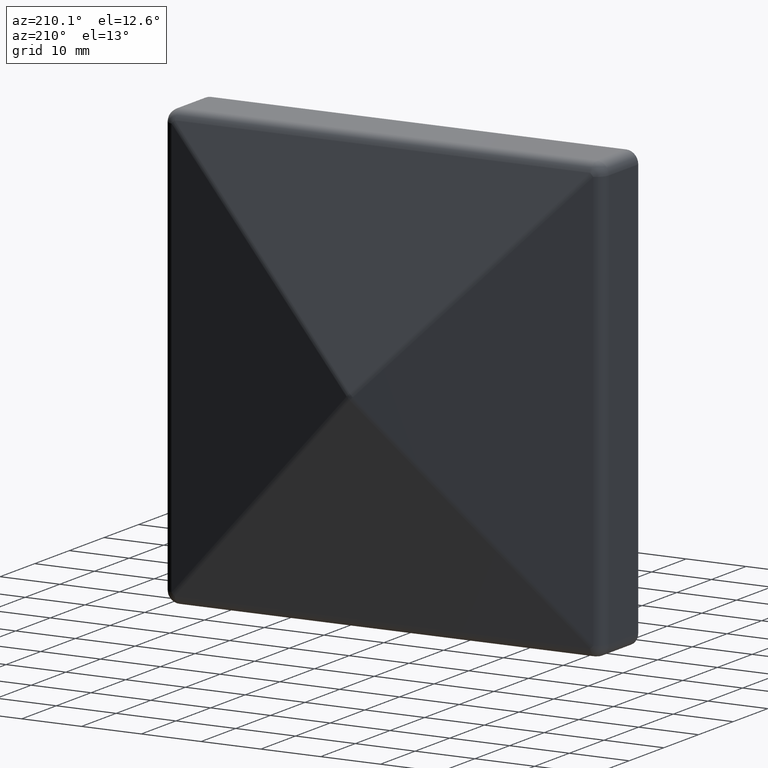
[diagram: clean part render]
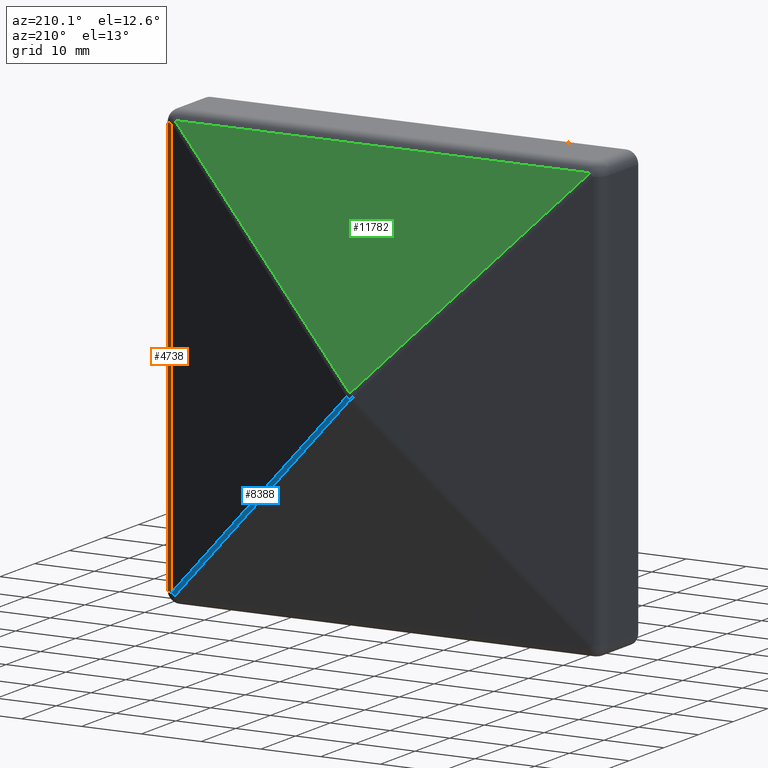
[diagram: same view with three faces highlighted in distinct colors, each labeled with its STEP entity id]
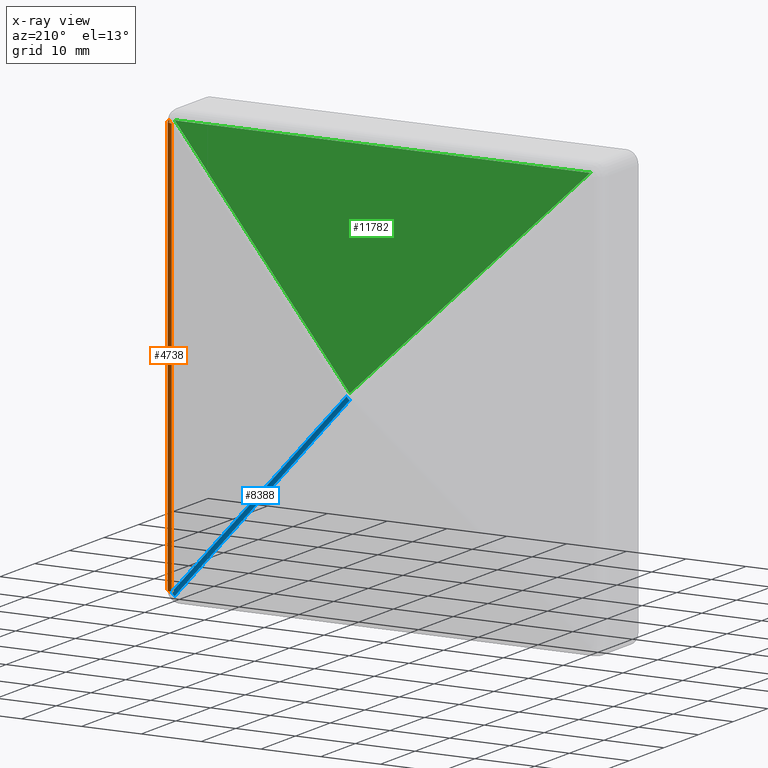
[diagram: x-ray of the same camera — body ghosted, the three highlighted faces saturated]
A machine part, auxiliary view with three faces highlighted in distinct colors.
The next image is the same camera in x-ray (body ghosted, the three faces saturated) — at least one of them is partly hidden behind the body in this view.
Their STEP definitions:

[orange] entity #4738 — the highlighted cylindrical surface (edge-blend (fillet) strip) has radius 2 mm, axis along (-0, -0, 1).
#592 = CARTESIAN_POINT ( 'NONE',  ( 34.75000000000000000, 8.471642575352495541, -36.75000000000000711 ) ) ;
#1688 = DIRECTION ( 'NONE',  ( -0.000000000000000000, -0.000000000000000000, 1.000000000000000000 ) ) ;
#1852 = EDGE_CURVE ( 'NONE', #7842, #3938, #10784, .T. ) ;
#2330 = FACE_OUTER_BOUND ( 'NONE', #5369, .T. ) ;
#2386 = AXIS2_PLACEMENT_3D ( 'NONE', #13080, #1688, #12814 ) ;
#2543 = ORIENTED_EDGE ( 'NONE', *, *, #13077, .T. ) ;
#2709 = VECTOR ( 'NONE', #10044, 1000.000000000000000 ) ;
#3410 = CARTESIAN_POINT ( 'NONE',  ( 35.27530178080336754, 10.40142443843568465, -36.75000000000000711 ) ) ;
#3584 = CYLINDRICAL_SURFACE ( 'NONE', #4741, 2.000000000000001776 ) ;
#3628 = CARTESIAN_POINT ( 'NONE',  ( 34.75000000000000000, 8.471642575352495541, 34.74999999999995026 ) ) ;
#3744 = CARTESIAN_POINT ( 'NONE',  ( 36.75000000000000711, 8.471642575352495541, 34.74999999999993605 ) ) ;
#3883 = DIRECTION ( 'NONE',  ( 1.000000000000000000, 1.734723475976805517E-15, 0.000000000000000000 ) ) ;
#3938 = VERTEX_POINT ( 'NONE', #3744 ) ;
#4106 = VERTEX_POINT ( 'NONE', #8131 ) ;
#4501 = ORIENTED_EDGE ( 'NONE', *, *, #6819, .T. ) ;
#4738 = ADVANCED_FACE ( 'NONE', ( #2330 ), #3584, .T. ) ;
#4741 = AXIS2_PLACEMENT_3D ( 'NONE', #592, #12823, #6734 ) ;
#4829 = CARTESIAN_POINT ( 'NONE',  ( 36.75000000000000711, 8.471642575352495541, -36.75000000000000711 ) ) ;
#5369 = EDGE_LOOP ( 'NONE', ( #2543, #10909, #8732, #4501 ) ) ;
#6690 = VECTOR ( 'NONE', #8509, 1000.000000000000000 ) ;
#6734 = DIRECTION ( 'NONE',  ( 1.000000000000000000, 0.000000000000000000, 0.000000000000000000 ) ) ;
#6819 = EDGE_CURVE ( 'NONE', #11341, #4106, #7248, .T. ) ;
#7248 = CIRCLE ( 'NONE', #2386, 2.000000000000001776 ) ;
#7842 = VERTEX_POINT ( 'NONE', #8790 ) ;
#8131 = CARTESIAN_POINT ( 'NONE',  ( 35.27530178080336754, 10.40142443843568465, -34.75000000000000711 ) ) ;
#8509 = DIRECTION ( 'NONE',  ( -0.000000000000000000, -0.000000000000000000, 1.000000000000000000 ) ) ;
#8732 = ORIENTED_EDGE ( 'NONE', *, *, #12851, .F. ) ;
#8790 = CARTESIAN_POINT ( 'NONE',  ( 35.27530178080336754, 10.40142443843568465, 34.74999999999995026 ) ) ;
#9417 = LINE ( 'NONE', #3410, #6690 ) ;
#10044 = DIRECTION ( 'NONE',  ( -0.000000000000000000, -0.000000000000000000, 1.000000000000000000 ) ) ;
#10784 = CIRCLE ( 'NONE', #12190, 2.000000000000001776 ) ;
#10909 = ORIENTED_EDGE ( 'NONE', *, *, #1852, .T. ) ;
#11341 = VERTEX_POINT ( 'NONE', #12898 ) ;
#12190 = AXIS2_PLACEMENT_3D ( 'NONE', #3628, #13059, #3883 ) ;
#12296 = LINE ( 'NONE', #4829, #2709 ) ;
#12814 = DIRECTION ( 'NONE',  ( 1.000000000000000000, 0.000000000000000000, 0.000000000000000000 ) ) ;
#12823 = DIRECTION ( 'NONE',  ( -0.000000000000000000, -0.000000000000000000, 1.000000000000000000 ) ) ;
#12851 = EDGE_CURVE ( 'NONE', #11341, #3938, #12296, .T. ) ;
#12898 = CARTESIAN_POINT ( 'NONE',  ( 36.75000000000000711, 8.471642575352495541, -34.75000000000000000 ) ) ;
#13059 = DIRECTION ( 'NONE',  ( 0.000000000000000000, 0.000000000000000000, -1.000000000000000000 ) ) ;
#13077 = EDGE_CURVE ( 'NONE', #4106, #7842, #9417, .T. ) ;
#13080 = CARTESIAN_POINT ( 'NONE',  ( 34.75000000000000000, 8.471642575352495541, -34.75000000000000711 ) ) ;

[blue] entity #8388 — the highlighted cylindrical surface (edge-blend (fillet) strip) has radius 2 mm, axis along (-0.6944, 0.189, 0.6944).
#151 = VECTOR ( 'NONE', #6879, 999.9999999999998863 ) ;
#674 = DIRECTION ( 'NONE',  ( 0.7071067811865473507, 0.000000000000000000, 0.7071067811865476838 ) ) ;
#1655 = DIRECTION ( 'NONE',  ( -0.6943612178190551321, 0.1890105774226695790, 0.6943612178190741169 ) ) ;
#2218 = VERTEX_POINT ( 'NONE', #6832 ) ;
#2298 = EDGE_CURVE ( 'NONE', #12692, #2218, #11283, .T. ) ;
#2827 = CARTESIAN_POINT ( 'NONE',  ( 0.5253017808033689784, 19.86064738592067513, -1.246832498358330099E-15 ) ) ;
#2951 = VECTOR ( 'NONE', #8179, 999.9999999999998863 ) ;
#4106 = VERTEX_POINT ( 'NONE', #8131 ) ;
#4222 = FACE_OUTER_BOUND ( 'NONE', #12741, .T. ) ;
#4361 = LINE ( 'NONE', #11123, #2951 ) ;
#4509 = AXIS2_PLACEMENT_3D ( 'NONE', #5650, #11975, #674 ) ;
#4589 = CARTESIAN_POINT ( 'NONE',  ( 34.75000000000000000, 8.471642575352497317, -34.75000000000000711 ) ) ;
#4773 = B_SPLINE_CURVE_WITH_KNOTS ( 'NONE', 3,
 ( #2827, #12109, #9030, #11919, #9997, #5822 ),
 .UNSPECIFIED., .F., .F.,
 ( 4, 2, 4 ),
 ( 0.000000000000000000, 0.5000000000000000000, 1.000000000000000000 ),
 .UNSPECIFIED. ) ;
#4931 = EDGE_CURVE ( 'NONE', #4106, #5992, #4361, .T. ) ;
#5264 = ORIENTED_EDGE ( 'NONE', *, *, #2298, .F. ) ;
#5650 = CARTESIAN_POINT ( 'NONE',  ( 0.2771686920009647226, 17.85541802782454468, -0.2771686920009577837 ) ) ;
#5822 = CARTESIAN_POINT ( 'NONE',  ( 6.938893903907228378E-15, 19.86064738592067869, -0.5253017808033583202 ) ) ;
#5992 = VERTEX_POINT ( 'NONE', #6010 ) ;
#6010 = CARTESIAN_POINT ( 'NONE',  ( 0.5253017808033689784, 19.86064738592067513, -1.246832498358330099E-15 ) ) ;
#6391 = EDGE_CURVE ( 'NONE', #4106, #2218, #12799, .T. ) ;
#6832 = CARTESIAN_POINT ( 'NONE',  ( 34.74999999999999289, 10.40142443843568287, -35.27530178080337464 ) ) ;
#6838 = CYLINDRICAL_SURFACE ( 'NONE', #4509, 2.000000000000000000 ) ;
#6879 = DIRECTION ( 'NONE',  ( 0.6943612178190651241, -0.1890105774226682744, -0.6943612178190646800 ) ) ;
#8131 = CARTESIAN_POINT ( 'NONE',  ( 35.27530178080336754, 10.40142443843568465, -34.75000000000000711 ) ) ;
#8179 = DIRECTION ( 'NONE',  ( -0.6943612178190651241, 0.1890105774226682467, 0.6943612178190646800 ) ) ;
#8388 = ADVANCED_FACE ( 'NONE', ( #4222 ), #6838, .T. ) ;
#8561 = ORIENTED_EDGE ( 'NONE', *, *, #4931, .F. ) ;
#8562 = ORIENTED_EDGE ( 'NONE', *, *, #12825, .F. ) ;
#8584 = ORIENTED_EDGE ( 'NONE', *, *, #6391, .T. ) ;
#8615 = DIRECTION ( 'NONE',  ( 0.7071067811865580088, 0.000000000000000000, 0.7071067811865372477 ) ) ;
#9030 = CARTESIAN_POINT ( 'NONE',  ( 0.3553629036471493974, 19.89481562568873230, -0.1792397403990701188 ) ) ;
#9997 = CARTESIAN_POINT ( 'NONE',  ( 0.08962077818032082588, 19.88335993154671399, -0.4418635359404987084 ) ) ;
#10065 = CARTESIAN_POINT ( 'NONE',  ( 35.00326768776823627, 10.33248298450781633, -35.52856946857156828 ) ) ;
#10314 = AXIS2_PLACEMENT_3D ( 'NONE', #4589, #1655, #8615 ) ;
#10565 = CARTESIAN_POINT ( 'NONE',  ( 6.938893903907228378E-15, 19.86064738592067869, -0.5253017808033583202 ) ) ;
#11123 = CARTESIAN_POINT ( 'NONE',  ( 0.2795327768083596953, 19.92754763922629024, 0.2457690039950078398 ) ) ;
#11283 = LINE ( 'NONE', #10065, #151 ) ;
#11919 = CARTESIAN_POINT ( 'NONE',  ( 0.1792397403990822480, 19.89481562568873230, -0.3553629036471361302 ) ) ;
#11975 = DIRECTION ( 'NONE',  ( -0.6943612178190650130, 0.1890105774226683022, 0.6943612178190645690 ) ) ;
#12109 = CARTESIAN_POINT ( 'NONE',  ( 0.4418635359405130303, 19.88335993154671044, -0.08962077818030886323 ) ) ;
#12692 = VERTEX_POINT ( 'NONE', #10565 ) ;
#12741 = EDGE_LOOP ( 'NONE', ( #8584, #5264, #8562, #8561 ) ) ;
#12799 = CIRCLE ( 'NONE', #10314, 2.000000000000002665 ) ;
#12825 = EDGE_CURVE ( 'NONE', #5992, #12692, #4773, .T. ) ;

[green] entity #11782 — the highlighted planar face has unit normal (0, 0.9649, 0.2627).
#517 = LINE ( 'NONE', #6736, #1947 ) ;
#1025 = CARTESIAN_POINT ( 'NONE',  ( 1.387778780781445676E-14, 19.86064738592068224, 0.5253017808033513258 ) ) ;
#1426 = VERTEX_POINT ( 'NONE', #6284 ) ;
#1463 = ORIENTED_EDGE ( 'NONE', *, *, #1675, .T. ) ;
#1620 = FACE_OUTER_BOUND ( 'NONE', #2262, .T. ) ;
#1675 = EDGE_CURVE ( 'NONE', #1426, #9508, #10622, .T. ) ;
#1947 = VECTOR ( 'NONE', #4759, 1000.000000000000000 ) ;
#2262 = EDGE_LOOP ( 'NONE', ( #12315, #1463, #3674 ) ) ;
#2653 = CARTESIAN_POINT ( 'NONE',  ( -0.2457690039950053418, 19.92754763922629380, 0.2795327768083521458 ) ) ;
#3600 = AXIS2_PLACEMENT_3D ( 'NONE', #6489, #12590, #9521 ) ;
#3674 = ORIENTED_EDGE ( 'NONE', *, *, #7585, .T. ) ;
#4271 = VECTOR ( 'NONE', #4644, 1000.000000000000000 ) ;
#4644 = DIRECTION ( 'NONE',  ( -0.6943612178190650130, 0.1890105774226682467, -0.6943612178190646800 ) ) ;
#4759 = DIRECTION ( 'NONE',  ( 1.000000000000000000, -0.000000000000000000, -4.440892098500625669E-16 ) ) ;
#4973 = VECTOR ( 'NONE', #11904, 1000.000000000000114 ) ;
#6224 = CARTESIAN_POINT ( 'NONE',  ( -34.74999999999998579, 10.40142443843568465, 35.27530178080338175 ) ) ;
#6284 = CARTESIAN_POINT ( 'NONE',  ( 34.75000000000000711, 10.40142443843568465, 35.27530178080334622 ) ) ;
#6489 = CARTESIAN_POINT ( 'NONE',  ( -36.75000000000003553, 19.99648909315415679, 0.02626508904018384771 ) ) ;
#6736 = CARTESIAN_POINT ( 'NONE',  ( -36.75000000000002842, 10.40142443843568465, 35.27530178080338175 ) ) ;
#7585 = EDGE_CURVE ( 'NONE', #9508, #8823, #8024, .T. ) ;
#8024 = LINE ( 'NONE', #10871, #4973 ) ;
#8823 = VERTEX_POINT ( 'NONE', #6224 ) ;
#9508 = VERTEX_POINT ( 'NONE', #1025 ) ;
#9521 = DIRECTION ( 'NONE',  ( 0.000000000000000000, -0.2626508904016808255, 0.9648909315415935550 ) ) ;
#10622 = LINE ( 'NONE', #2653, #4271 ) ;
#10871 = CARTESIAN_POINT ( 'NONE',  ( -35.00326768776817232, 10.33248298450782166, 35.52856946857158249 ) ) ;
#11563 = EDGE_CURVE ( 'NONE', #8823, #1426, #517, .T. ) ;
#11782 = ADVANCED_FACE ( 'NONE', ( #1620 ), #12473, .T. ) ;
#11904 = DIRECTION ( 'NONE',  ( -0.6943612178190643469, -0.1890105774226682744, 0.6943612178190652351 ) ) ;
#12315 = ORIENTED_EDGE ( 'NONE', *, *, #11563, .T. ) ;
#12473 = PLANE ( 'NONE',  #3600 ) ;
#12590 = DIRECTION ( 'NONE',  ( 1.166404263848978331E-16, 0.9648909315415936661, 0.2626508904016808810 ) ) ;